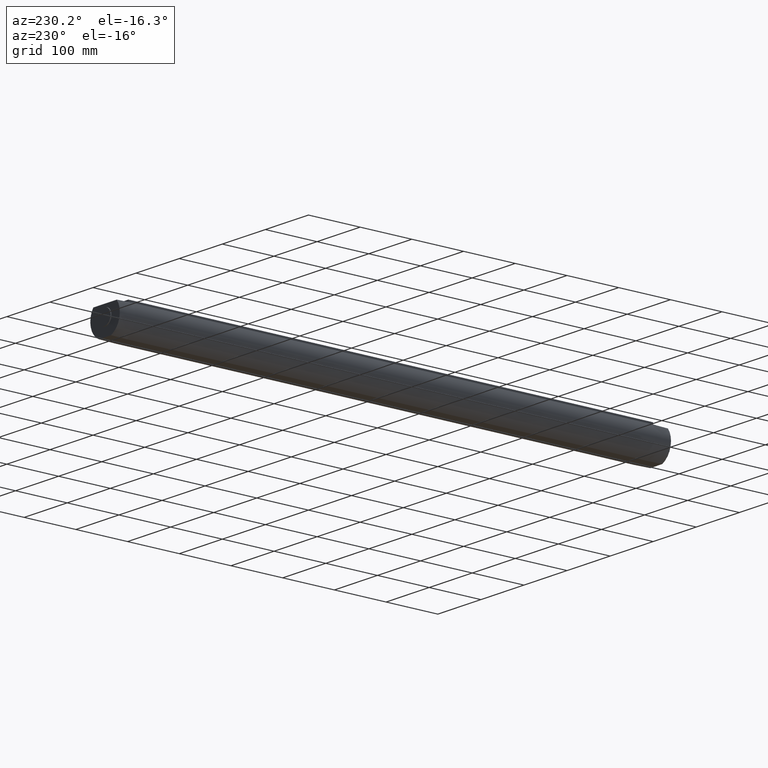
[diagram: clean part render]
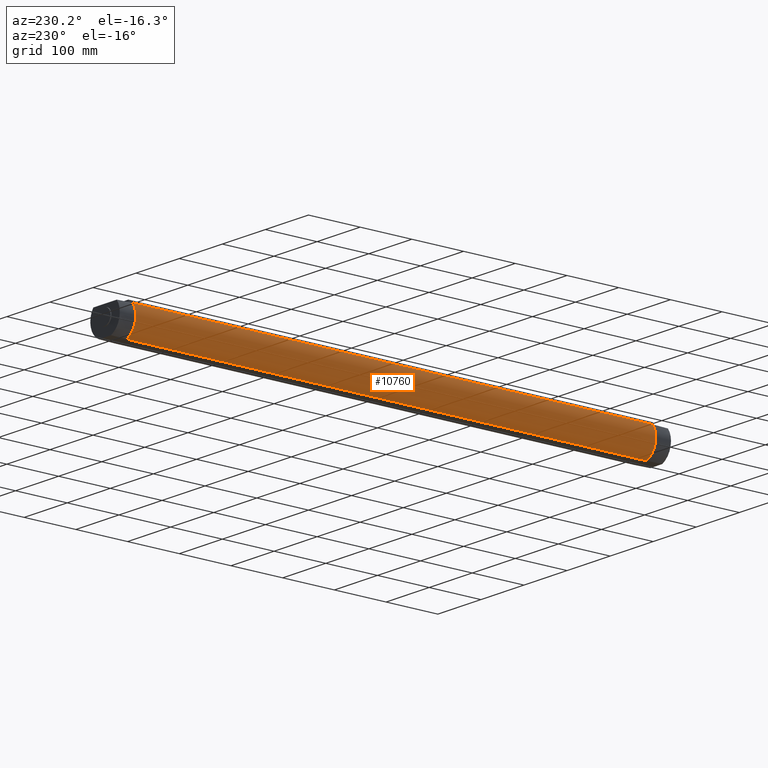
[diagram: same view with one face highlighted and labeled with its STEP entity id]
A machine part, auxiliary view. The second image highlights one B-rep face of the part: STEP entity #10760.
In plain terms, the highlighted cylindrical surface (edge-blend (fillet) strip) has radius 35 mm, axis along (0, -1, 0).
Its self-contained STEP definition (entity closure, byte-faithful):
#7300=CARTESIAN_POINT('',(27.6179289592829,21.5,1038.));
#7310=VERTEX_POINT('',#7300);
#8660=CARTESIAN_POINT('',(27.6179289592829,21.5,32.));
#8670=VERTEX_POINT('',#8660);
#9410=CARTESIAN_POINT('',(14.1774468787578,-32.,32.));
#9420=VERTEX_POINT('',#9410);
#9450=CARTESIAN_POINT('',(-3.67769503445067E-14,-5.36886874437449E-14,
32.0000000000346));
#9460=DIRECTION('',(3.79229863993302E-15,1.41816152685171E-15,-1.));
#9470=DIRECTION('',(1.,5.1706277563674E-30,3.79229863993302E-15));
#9480=AXIS2_PLACEMENT_3D('',#9450,#9460,#9470);
#9490=CIRCLE('',#9480,35.0000000000005);
#9500=EDGE_CURVE('',#8670,#9420,#9490,.T.);
#10330=CARTESIAN_POINT('',(14.1774463451917,-32.,1037.99999949973));
#10340=VERTEX_POINT('',#10330);
#10370=CARTESIAN_POINT('',(14.1774468787578,-32.,1038.5));
#10380=DIRECTION('',(0.,0.,-1.));
#10390=VECTOR('',#10380,1.);
#10400=LINE('',#10370,#10390);
#10410=EDGE_CURVE('',#10340,#9420,#10400,.T.);
#10540=CARTESIAN_POINT('',(1.06581410364015E-13,1.68753899743024E-14,
1038.5));
#10550=DIRECTION('',(0.,0.,-1.));
#10560=DIRECTION('',(-1.,0.,0.));
#10570=AXIS2_PLACEMENT_3D('',#10540,#10550,#10560);
#10580=CYLINDRICAL_SURFACE('',#10570,35.);
#10590=CARTESIAN_POINT('',(6.48471516911607E-13,-5.85388738406747E-13,
1037.99999999988));
#10600=DIRECTION('',(-1.40007566125379E-14,1.24362994449786E-14,1.));
#10610=DIRECTION('',(-1.,-1.74117601689786E-28,-1.40007566125379E-14));
#10620=AXIS2_PLACEMENT_3D('',#10590,#10600,#10610);
#10630=CIRCLE('',#10620,35.0000000000008);
#10640=EDGE_CURVE('',#10340,#7310,#10630,.T.);
#10650=ORIENTED_EDGE('',*,*,#10640,.F.);
#10660=CARTESIAN_POINT('',(27.617928959283,21.5,1038.5));
#10670=DIRECTION('',(0.,0.,1.));
#10680=VECTOR('',#10670,1.);
#10690=LINE('',#10660,#10680);
#10700=EDGE_CURVE('',#8670,#7310,#10690,.T.);
#10710=ORIENTED_EDGE('',*,*,#10700,.T.);
#10720=ORIENTED_EDGE('',*,*,#9500,.F.);
#10730=ORIENTED_EDGE('',*,*,#10410,.T.);
#10740=EDGE_LOOP('',(#10730,#10720,#10710,#10650));
#10750=FACE_OUTER_BOUND('',#10740,.T.);
#10760=ADVANCED_FACE('',(#10750),#10580,.T.);